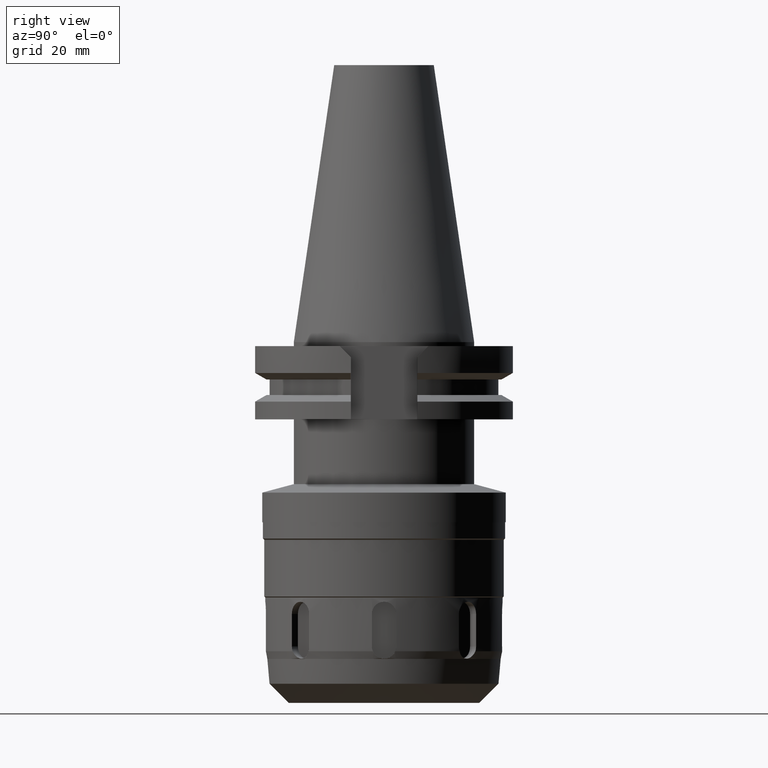
[diagram: clean part render]
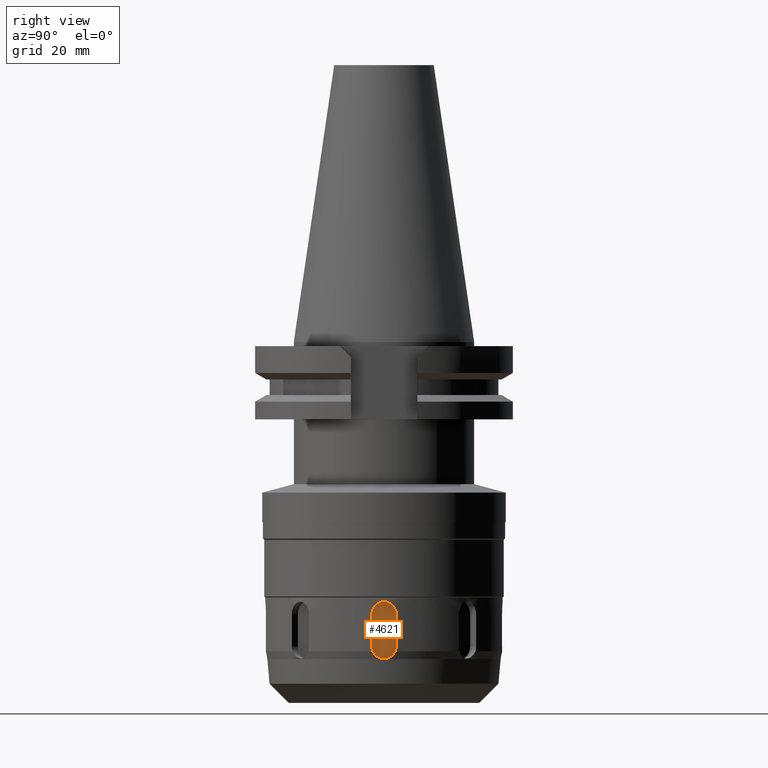
[diagram: same view with one face highlighted and labeled with its STEP entity id]
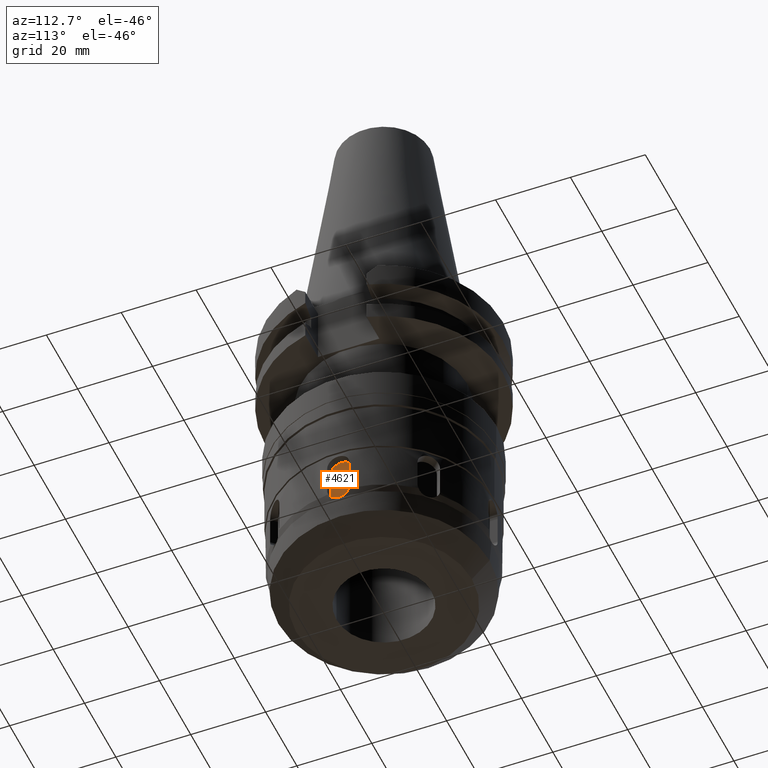
[diagram: same view with one face highlighted and labeled with its STEP entity id]
A machine part, right view. The second image highlights one B-rep face of the part: STEP entity #4621.
A second angle (auxiliary view) of the same face is appended — the face is thin or edge-on in the first view.
In plain terms, the highlighted planar face has unit normal (1, 0, 0).
Its self-contained STEP definition (entity closure, byte-faithful):
#2224=CARTESIAN_POINT('',(2.7E1,0.E0,-6.7E1));
#2225=DIRECTION('',(-1.E0,0.E0,0.E0));
#2226=DIRECTION('',(0.E0,-1.E0,0.E0));
#2227=AXIS2_PLACEMENT_3D('',#2224,#2225,#2226);
#2232=CARTESIAN_POINT('',(2.7E1,0.E0,-6.7E1));
#2233=DIRECTION('',(-1.E0,0.E0,0.E0));
#2234=DIRECTION('',(0.E0,0.E0,1.E0));
#2235=AXIS2_PLACEMENT_3D('',#2232,#2233,#2234);
#2240=DIRECTION('',(0.E0,0.E0,-1.E0));
#2241=VECTOR('',#2240,8.E0);
#2242=CARTESIAN_POINT('',(2.7E1,3.E0,-6.7E1));
#2243=LINE('',#2242,#2241);
#2247=CARTESIAN_POINT('',(2.7E1,0.E0,-7.5E1));
#2248=DIRECTION('',(-1.E0,0.E0,0.E0));
#2249=DIRECTION('',(0.E0,1.E0,0.E0));
#2250=AXIS2_PLACEMENT_3D('',#2247,#2248,#2249);
#2255=CARTESIAN_POINT('',(2.7E1,0.E0,-7.5E1));
#2256=DIRECTION('',(-1.E0,0.E0,0.E0));
#2257=DIRECTION('',(0.E0,0.E0,-1.E0));
#2258=AXIS2_PLACEMENT_3D('',#2255,#2256,#2257);
#2263=DIRECTION('',(0.E0,0.E0,1.E0));
#2264=VECTOR('',#2263,8.E0);
#2265=CARTESIAN_POINT('',(2.7E1,-3.E0,-7.5E1));
#2266=LINE('',#2265,#2264);
#3058=CARTESIAN_POINT('',(2.7E1,-3.E0,-7.5E1));
#3059=VERTEX_POINT('',#3058);
#3060=CARTESIAN_POINT('',(2.7E1,0.E0,-7.8E1));
#3061=VERTEX_POINT('',#3060);
#3062=CARTESIAN_POINT('',(2.7E1,3.E0,-7.5E1));
#3063=VERTEX_POINT('',#3062);
#3064=CARTESIAN_POINT('',(2.7E1,-3.E0,-6.7E1));
#3065=VERTEX_POINT('',#3064);
#3066=CARTESIAN_POINT('',(2.7E1,3.E0,-6.7E1));
#3067=VERTEX_POINT('',#3066);
#3068=CARTESIAN_POINT('',(2.7E1,0.E0,-6.4E1));
#3069=VERTEX_POINT('',#3068);
#4608=CARTESIAN_POINT('',(2.7E1,0.E0,0.E0));
#4609=DIRECTION('',(1.E0,0.E0,0.E0));
#4610=DIRECTION('',(0.E0,0.E0,-1.E0));
#4611=AXIS2_PLACEMENT_3D('',#4608,#4609,#4610);
#4612=PLANE('',#4611);
#4613=ORIENTED_EDGE('',*,*,#4589,.T.);
#4614=ORIENTED_EDGE('',*,*,#4587,.T.);
#4615=ORIENTED_EDGE('',*,*,#4602,.T.);
#4616=ORIENTED_EDGE('',*,*,#4556,.T.);
#4617=ORIENTED_EDGE('',*,*,#4554,.T.);
#4618=ORIENTED_EDGE('',*,*,#4572,.T.);
#4619=EDGE_LOOP('',(#4613,#4614,#4615,#4616,#4617,#4618));
#4620=FACE_OUTER_BOUND('',#4619,.F.);
#2228=CIRCLE('',#2227,3.E0);
#2236=CIRCLE('',#2235,3.E0);
#2251=CIRCLE('',#2250,3.E0);
#2259=CIRCLE('',#2258,3.E0);
#4554=EDGE_CURVE('',#3061,#3059,#2259,.T.);
#4556=EDGE_CURVE('',#3063,#3061,#2251,.T.);
#4572=EDGE_CURVE('',#3059,#3065,#2266,.T.);
#4587=EDGE_CURVE('',#3069,#3067,#2236,.T.);
#4589=EDGE_CURVE('',#3065,#3069,#2228,.T.);
#4602=EDGE_CURVE('',#3067,#3063,#2243,.T.);
#4621=ADVANCED_FACE('',(#4620),#4612,.T.);